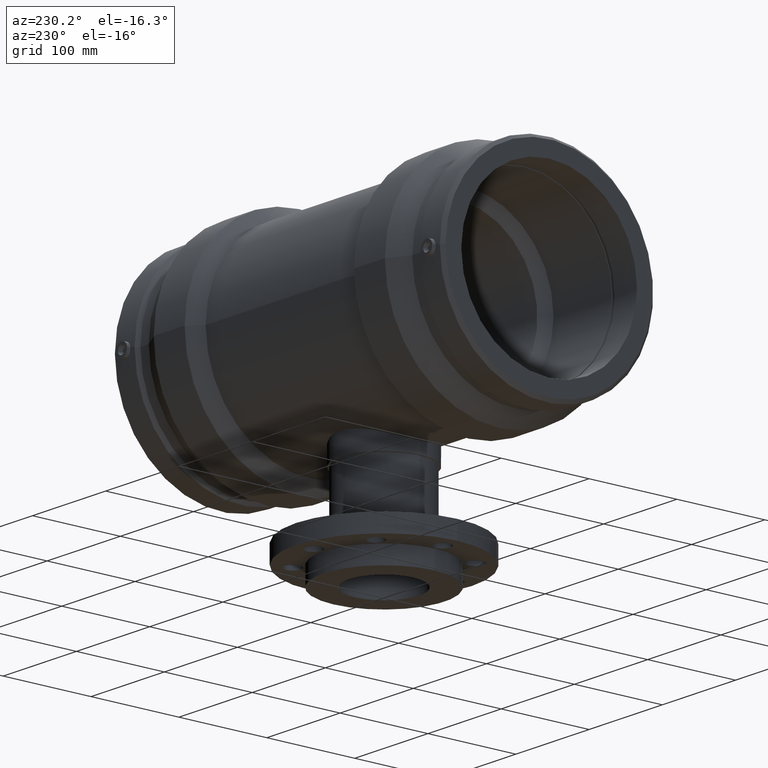
[diagram: clean part render]
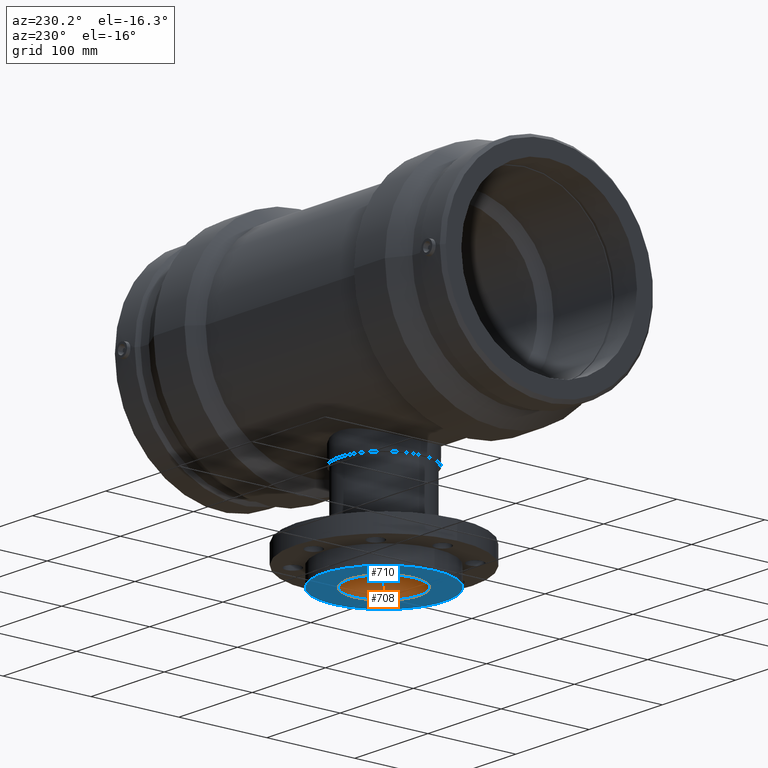
[diagram: same view with the hole feature highlighted: cylindrical wall and planar end face, labeled with their STEP entity ids]
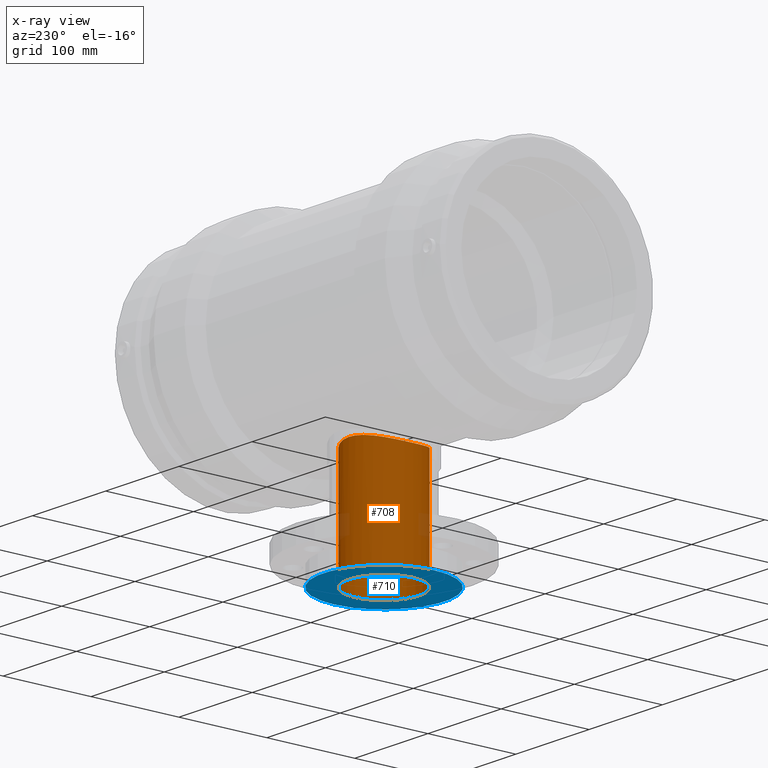
[diagram: x-ray of the same camera — body ghosted, the hole faces saturated]
A machine part, auxiliary view. The highlighted faces form one hole feature of diameter 80 mm: the cylindrical wall (entity #708, orange) and its adjacent planar end face (entity #710, blue) — they share a circular edge in the B-rep.
The next image is the same camera in x-ray (body ghosted, the hole faces saturated) — the bore reads through the body.
Wall:
#52=FACE_BOUND('',#293,.T.);
#137=CIRCLE('',#786,40.);
#193=CYLINDRICAL_SURFACE('',#785,40.);
#224=FACE_OUTER_BOUND('',#292,.T.);
#292=EDGE_LOOP('',(#578));
#293=EDGE_LOOP('',(#579));
#414=B_SPLINE_CURVE_WITH_KNOTS('',3,(#1267,#1268,#1269,#1270,#1271,#1272,
#1273,#1274,#1275,#1276,#1277,#1278,#1279,#1280,#1281,#1282,#1283,#1284,
#1285,#1286,#1287,#1288,#1289,#1290,#1291,#1292,#1293,#1294,#1295,#1296,
#1297,#1298,#1299,#1300,#1301,#1302,#1303,#1304,#1305,#1306,#1307,#1308,
#1309,#1310,#1311,#1312,#1313,#1314,#1315,#1316,#1317,#1318,#1319,#1320,
#1321,#1322,#1323,#1324,#1325,#1326,#1327,#1328,#1329,#1330,#1331,#1332,
#1333,#1334,#1335,#1336,#1337,#1338,#1339,#1340,#1341,#1342,#1343,#1344,
#1345,#1346,#1347,#1348,#1349,#1350,#1351,#1352,#1353,#1354,#1355,#1356,
#1357,#1358,#1359,#1360,#1361,#1362,#1363),.UNSPECIFIED.,.T.,.F.,(4,3,3,
3,3,3,3,3,3,3,3,3,3,3,3,3,3,3,3,3,3,3,3,3,3,3,3,3,3,3,3,3,4),(0.,0.760188073628465,
1.52037614725693,2.28056422088539,3.04075229451386,3.80055425190081,4.56035620928776,
5.32015816667472,6.07996012406167,6.83976208144862,7.59956403883557,8.35936599622252,
9.11916795360948,9.87935602723794,10.6395441008664,11.3997321744949,12.1599202481233,
12.9201083217518,13.6802963953803,14.4404844690087,15.2006725426372,15.9604745000242,
16.7202764574111,17.4800784147981,18.239880372185,18.999682329572,19.7594842869589,
20.5192862443459,21.2790882017328,22.0392762753613,22.7994643489897,23.5596524226182,
24.3198404962467),.UNSPECIFIED.);
#419=VERTEX_POINT('',#1266);
#437=VERTEX_POINT('',#1443);
#488=EDGE_CURVE('',#419,#419,#414,.T.);
#507=EDGE_CURVE('',#437,#437,#137,.T.);
#578=ORIENTED_EDGE('',*,*,#507,.T.);
#579=ORIENTED_EDGE('',*,*,#488,.F.);
#708=ADVANCED_FACE('',(#224,#52),#193,.F.);
#785=AXIS2_PLACEMENT_3D('',#1442,#935,#936);
#786=AXIS2_PLACEMENT_3D('',#1444,#937,#938);
#935=DIRECTION('center_axis',(-1.22464679914735E-16,0.,-1.));
#936=DIRECTION('ref_axis',(-1.,0.,0.));
#937=DIRECTION('center_axis',(-1.22464679914735E-16,0.,-1.));
#938=DIRECTION('ref_axis',(1.,0.,-1.22464679914735E-16));
#1266=CARTESIAN_POINT('',(-1.33226762955019E-14,40.,-110.428721354546));
#1267=CARTESIAN_POINT('Ctrl Pts',(-1.33226762955019E-14,40.,-110.428721354546));
#1268=CARTESIAN_POINT('Ctrl Pts',(2.5339602454282,40.,-110.428721354546));
#1269=CARTESIAN_POINT('Ctrl Pts',(5.14724904541023,39.7553415746637,-110.518367390995));
#1270=CARTESIAN_POINT('Ctrl Pts',(7.73954336463347,39.2441010663636,-110.699607187619));
#1271=CARTESIAN_POINT('Ctrl Pts',(10.3318376838567,38.7328605580635,-110.880846984242));
#1272=CARTESIAN_POINT('Ctrl Pts',(12.9032226835929,37.9553367536873,-111.153305557268));
#1273=CARTESIAN_POINT('Ctrl Pts',(15.3635627489286,36.9318418124511,-111.492338572389));
#1274=CARTESIAN_POINT('Ctrl Pts',(17.8239028142643,35.908346871215,-111.83137158751));
#1275=CARTESIAN_POINT('Ctrl Pts',(20.1775044794683,34.6372571353301,-112.23677825164));
#1276=CARTESIAN_POINT('Ctrl Pts',(22.3513906795842,33.1725087186453,-112.668039679899));
#1277=CARTESIAN_POINT('Ctrl Pts',(24.5252768797,31.7077603019605,-113.099301108159));
#1278=CARTESIAN_POINT('Ctrl Pts',(26.519447520582,30.0490949743418,-113.555540344632));
#1279=CARTESIAN_POINT('Ctrl Pts',(28.2842712474619,28.2842712474619,-113.993431828329));
#1280=CARTESIAN_POINT('Ctrl Pts',(30.0481985815569,26.5203439133669,-114.431100897311));
#1281=CARTESIAN_POINT('Ctrl Pts',(31.70675536629,24.5265982297938,-114.881906312625));
#1282=CARTESIAN_POINT('Ctrl Pts',(33.1716985040339,22.3525931014161,-115.303356766586));
#1283=CARTESIAN_POINT('Ctrl Pts',(34.6366416417778,20.1785879730384,-115.724807220546));
#1284=CARTESIAN_POINT('Ctrl Pts',(35.9081898895082,17.8243229911375,-116.116140026924));
#1285=CARTESIAN_POINT('Ctrl Pts',(36.9319424449374,15.3633208403599,-116.440847097383));
#1286=CARTESIAN_POINT('Ctrl Pts',(37.9556950003665,12.9023186895823,-116.765554167843));
#1287=CARTESIAN_POINT('Ctrl Pts',(38.7332780120406,10.330292914133,-117.023661502925));
#1288=CARTESIAN_POINT('Ctrl Pts',(39.2444253054767,7.73789909748503,-117.194826752537));
#1289=CARTESIAN_POINT('Ctrl Pts',(39.7555725989128,5.14550528083702,-117.365992002148));
#1290=CARTESIAN_POINT('Ctrl Pts',(40.,2.53267319128984,-117.45));
#1291=CARTESIAN_POINT('Ctrl Pts',(40.,4.44089209850063E-15,-117.45));
#1292=CARTESIAN_POINT('Ctrl Pts',(40.,-2.53267319128983,-117.45));
#1293=CARTESIAN_POINT('Ctrl Pts',(39.7555725989128,-5.14550528083703,-117.365992002149));
#1294=CARTESIAN_POINT('Ctrl Pts',(39.2444253054767,-7.73789909748503,-117.194826752537));
#1295=CARTESIAN_POINT('Ctrl Pts',(38.7332780120406,-10.330292914133,-117.023661502925));
#1296=CARTESIAN_POINT('Ctrl Pts',(37.9556950003665,-12.9023186895823,-116.765554167843));
#1297=CARTESIAN_POINT('Ctrl Pts',(36.9319424449374,-15.3633208403599,-116.440847097383));
#1298=CARTESIAN_POINT('Ctrl Pts',(35.9081898895082,-17.8243229911375,-116.116140026924));
#1299=CARTESIAN_POINT('Ctrl Pts',(34.6366416417778,-20.1785879730384,-115.724807220546));
#1300=CARTESIAN_POINT('Ctrl Pts',(33.1716985040339,-22.3525931014161,-115.303356766586));
#1301=CARTESIAN_POINT('Ctrl Pts',(31.70675536629,-24.5265982297938,-114.881906312625));
#1302=CARTESIAN_POINT('Ctrl Pts',(30.0481985815569,-26.5203439133669,-114.431100897311));
#1303=CARTESIAN_POINT('Ctrl Pts',(28.2842712474619,-28.2842712474619,-113.993431828329));
#1304=CARTESIAN_POINT('Ctrl Pts',(26.519447520582,-30.0490949743418,-113.555540344632));
#1305=CARTESIAN_POINT('Ctrl Pts',(24.5252768797,-31.7077603019605,-113.099301108159));
#1306=CARTESIAN_POINT('Ctrl Pts',(22.3513906795842,-33.1725087186453,-112.668039679899));
#1307=CARTESIAN_POINT('Ctrl Pts',(20.1775044794683,-34.6372571353301,-112.23677825164));
#1308=CARTESIAN_POINT('Ctrl Pts',(17.8239028142642,-35.908346871215,-111.83137158751));
#1309=CARTESIAN_POINT('Ctrl Pts',(15.3635627489286,-36.9318418124511,-111.492338572389));
#1310=CARTESIAN_POINT('Ctrl Pts',(12.9032226835929,-37.9553367536873,-111.153305557268));
#1311=CARTESIAN_POINT('Ctrl Pts',(10.3318376838567,-38.7328605580635,-110.880846984242));
#1312=CARTESIAN_POINT('Ctrl Pts',(7.73954336463347,-39.2441010663636,-110.699607187619));
#1313=CARTESIAN_POINT('Ctrl Pts',(5.14724904541022,-39.7553415746637,-110.518367390995));
#1314=CARTESIAN_POINT('Ctrl Pts',(2.5339602454282,-40.,-110.428721354546));
#1315=CARTESIAN_POINT('Ctrl Pts',(-1.2526933039045E-14,-40.,-110.428721354546));
#1316=CARTESIAN_POINT('Ctrl Pts',(-2.53396024542823,-40.,-110.428721354546));
#1317=CARTESIAN_POINT('Ctrl Pts',(-5.14724904541026,-39.7553415746637,-110.518367390995));
#1318=CARTESIAN_POINT('Ctrl Pts',(-7.73954336463351,-39.2441010663636,-110.699607187619));
#1319=CARTESIAN_POINT('Ctrl Pts',(-10.3318376838568,-38.7328605580635,-110.880846984242));
#1320=CARTESIAN_POINT('Ctrl Pts',(-12.903222683593,-37.9553367536873,-111.153305557268));
#1321=CARTESIAN_POINT('Ctrl Pts',(-15.3635627489286,-36.9318418124511,-111.492338572389));
#1322=CARTESIAN_POINT('Ctrl Pts',(-17.8239028142643,-35.908346871215,-111.83137158751));
#1323=CARTESIAN_POINT('Ctrl Pts',(-20.1775044794683,-34.6372571353301,-112.23677825164));
#1324=CARTESIAN_POINT('Ctrl Pts',(-22.3513906795842,-33.1725087186453,-112.668039679899));
#1325=CARTESIAN_POINT('Ctrl Pts',(-24.5252768797,-31.7077603019605,-113.099301108159));
#1326=CARTESIAN_POINT('Ctrl Pts',(-26.519447520582,-30.0490949743418,-113.555540344632));
#1327=CARTESIAN_POINT('Ctrl Pts',(-28.2842712474619,-28.2842712474619,-113.993431828329));
#1328=CARTESIAN_POINT('Ctrl Pts',(-30.0481985815569,-26.5203439133669,-114.431100897311));
#1329=CARTESIAN_POINT('Ctrl Pts',(-31.7067553662901,-24.5265982297938,-114.881906312625));
#1330=CARTESIAN_POINT('Ctrl Pts',(-33.171698504034,-22.3525931014161,-115.303356766586));
#1331=CARTESIAN_POINT('Ctrl Pts',(-34.6366416417779,-20.1785879730383,-115.724807220546));
#1332=CARTESIAN_POINT('Ctrl Pts',(-35.9081898895083,-17.8243229911375,-116.116140026924));
#1333=CARTESIAN_POINT('Ctrl Pts',(-36.9319424449374,-15.3633208403599,-116.440847097383));
#1334=CARTESIAN_POINT('Ctrl Pts',(-37.9556950003665,-12.9023186895823,-116.765554167843));
#1335=CARTESIAN_POINT('Ctrl Pts',(-38.7332780120406,-10.330292914133,-117.023661502925));
#1336=CARTESIAN_POINT('Ctrl Pts',(-39.2444253054767,-7.73789909748503,-117.194826752537));
#1337=CARTESIAN_POINT('Ctrl Pts',(-39.7555725989128,-5.14550528083702,-117.365992002148));
#1338=CARTESIAN_POINT('Ctrl Pts',(-40.,-2.53267319128985,-117.45));
#1339=CARTESIAN_POINT('Ctrl Pts',(-40.,-9.43689570931383E-15,-117.45));
#1340=CARTESIAN_POINT('Ctrl Pts',(-40.,2.53267319128983,-117.45));
#1341=CARTESIAN_POINT('Ctrl Pts',(-39.7555725989128,5.14550528083701,-117.365992002149));
#1342=CARTESIAN_POINT('Ctrl Pts',(-39.2444253054767,7.73789909748502,-117.194826752537));
#1343=CARTESIAN_POINT('Ctrl Pts',(-38.7332780120407,10.330292914133,-117.023661502925));
#1344=CARTESIAN_POINT('Ctrl Pts',(-37.9556950003665,12.9023186895823,-116.765554167843));
#1345=CARTESIAN_POINT('Ctrl Pts',(-36.9319424449374,15.3633208403599,-116.440847097383));
#1346=CARTESIAN_POINT('Ctrl Pts',(-35.9081898895083,17.8243229911375,-116.116140026924));
#1347=CARTESIAN_POINT('Ctrl Pts',(-34.6366416417778,20.1785879730383,-115.724807220546));
#1348=CARTESIAN_POINT('Ctrl Pts',(-33.1716985040339,22.3525931014161,-115.303356766586));
#1349=CARTESIAN_POINT('Ctrl Pts',(-31.7067553662901,24.5265982297938,-114.881906312625));
#1350=CARTESIAN_POINT('Ctrl Pts',(-30.0481985815569,26.5203439133669,-114.431100897311));
#1351=CARTESIAN_POINT('Ctrl Pts',(-28.2842712474619,28.2842712474619,-113.993431828329));
#1352=CARTESIAN_POINT('Ctrl Pts',(-26.519447520582,30.0490949743418,-113.555540344632));
#1353=CARTESIAN_POINT('Ctrl Pts',(-24.5252768797,31.7077603019605,-113.099301108159));
#1354=CARTESIAN_POINT('Ctrl Pts',(-22.3513906795842,33.1725087186453,-112.668039679899));
#1355=CARTESIAN_POINT('Ctrl Pts',(-20.1775044794683,34.6372571353301,-112.23677825164));
#1356=CARTESIAN_POINT('Ctrl Pts',(-17.8239028142643,35.9083468712149,-111.83137158751));
#1357=CARTESIAN_POINT('Ctrl Pts',(-15.3635627489287,36.9318418124511,-111.492338572389));
#1358=CARTESIAN_POINT('Ctrl Pts',(-12.903222683593,37.9553367536873,-111.153305557268));
#1359=CARTESIAN_POINT('Ctrl Pts',(-10.3318376838568,38.7328605580635,-110.880846984242));
#1360=CARTESIAN_POINT('Ctrl Pts',(-7.73954336463351,39.2441010663636,-110.699607187619));
#1361=CARTESIAN_POINT('Ctrl Pts',(-5.14724904541026,39.7553415746637,-110.518367390995));
#1362=CARTESIAN_POINT('Ctrl Pts',(-2.53396024542825,40.,-110.428721354546));
#1363=CARTESIAN_POINT('Ctrl Pts',(-1.3523618014078E-14,40.,-110.428721354546));
#1442=CARTESIAN_POINT('Origin',(-1.46957615897682E-14,0.,-120.));
#1443=CARTESIAN_POINT('',(-40.,0.,-240.));
#1444=CARTESIAN_POINT('Origin',(-2.93915231795365E-14,0.,-240.));
End face:
#30=PLANE('',#789);
#54=FACE_BOUND('',#297,.T.);
#137=CIRCLE('',#786,40.);
#139=CIRCLE('',#790,69.);
#226=FACE_OUTER_BOUND('',#296,.T.);
#296=EDGE_LOOP('',(#582));
#297=EDGE_LOOP('',(#583));
#437=VERTEX_POINT('',#1443);
#440=VERTEX_POINT('',#1516);
#507=EDGE_CURVE('',#437,#437,#137,.T.);
#510=EDGE_CURVE('',#440,#440,#139,.T.);
#582=ORIENTED_EDGE('',*,*,#510,.T.);
#583=ORIENTED_EDGE('',*,*,#507,.F.);
#710=ADVANCED_FACE('',(#226,#54),#30,.T.);
#786=AXIS2_PLACEMENT_3D('',#1444,#937,#938);
#789=AXIS2_PLACEMENT_3D('',#1515,#943,#944);
#790=AXIS2_PLACEMENT_3D('',#1517,#945,#946);
#937=DIRECTION('center_axis',(-1.22464679914735E-16,0.,-1.));
#938=DIRECTION('ref_axis',(1.,0.,-1.22464679914735E-16));
#943=DIRECTION('center_axis',(-1.22464679914735E-16,0.,-1.));
#944=DIRECTION('ref_axis',(-1.,0.,0.));
#945=DIRECTION('center_axis',(-1.22464679914735E-16,0.,-1.));
#946=DIRECTION('ref_axis',(1.,0.,-1.22464679914735E-16));
#1443=CARTESIAN_POINT('',(-40.,0.,-240.));
#1444=CARTESIAN_POINT('Origin',(-2.93915231795365E-14,0.,-240.));
#1515=CARTESIAN_POINT('Origin',(-40.,0.,-240.));
#1516=CARTESIAN_POINT('',(-69.,0.,-240.));
#1517=CARTESIAN_POINT('Origin',(-2.93915231795365E-14,0.,-240.));